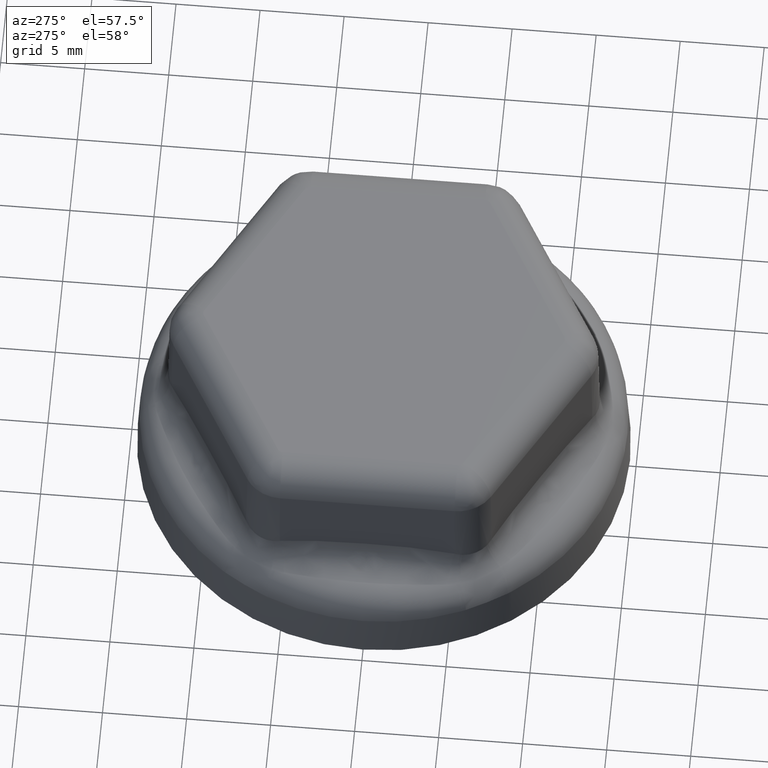
[diagram: clean part render]
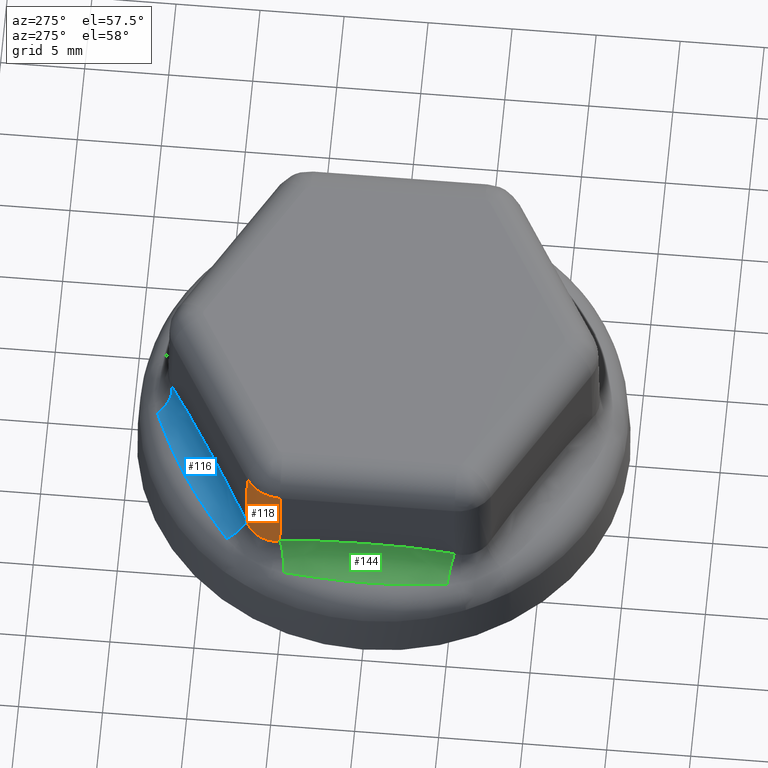
[diagram: same view with three faces highlighted in distinct colors, each labeled with its STEP entity id]
A machine part, auxiliary view with three faces highlighted in distinct colors.
Their STEP definitions:

[orange] entity #118 — the highlighted face is a freeform B-spline surface patch.
#118 = ADVANCED_FACE( '', ( #294 ), #295, .T. );
#294 = FACE_OUTER_BOUND( '', #1724, .T. );
#295 = B_SPLINE_SURFACE_WITH_KNOTS( '', 1, 3, ( ( #1725, #1726, #1727, #1728 ), ( #1729, #1730, #1731, #1732 ) ), .UNSPECIFIED., .F., .F., .F., ( 2, 2 ), ( 4, 4 ), ( 0.000000000000000, 1.00000000000000 ), ( 3.00000000000000, 7.00000000000000 ), .UNSPECIFIED. );
#1724 = EDGE_LOOP( '', ( #5415, #5416, #5417, #5418, #5419, #5420, #5421, #5422 ) );
#1725 = CARTESIAN_POINT( '', ( -11.5000000000000, 5.19619638932786, 2.80000000000000 ) );
#1726 = CARTESIAN_POINT( '', ( -11.4999999936443, 6.08106545357264, 2.80000000000000 ) );
#1727 = CARTESIAN_POINT( '', ( -11.0163571616939, 6.91875941123177, 2.80000000000000 ) );
#1728 = CARTESIAN_POINT( '', ( -10.2500380762108, 7.36119394885715, 2.80000000000000 ) );
#1729 = CARTESIAN_POINT( '', ( -11.2905392208614, 5.19619638932786, 14.8000000000000 ) );
#1730 = CARTESIAN_POINT( '', ( -11.2905392146864, 6.00689752078440, 14.7999999999985 ) );
#1731 = CARTESIAN_POINT( '', ( -10.8473954582745, 6.77444502195213, 14.8000000000000 ) );
#1732 = CARTESIAN_POINT( '', ( -10.1453076866415, 7.17979559302663, 14.8000000000000 ) );
#5415 = ORIENTED_EDGE( '', *, *, #6010, .T. );
#5416 = ORIENTED_EDGE( '', *, *, #6011, .T. );
#5417 = ORIENTED_EDGE( '', *, *, #6007, .F. );
#5418 = ORIENTED_EDGE( '', *, *, #6012, .T. );
#5419 = ORIENTED_EDGE( '', *, *, #6013, .T. );
#5420 = ORIENTED_EDGE( '', *, *, #6014, .T. );
#5421 = ORIENTED_EDGE( '', *, *, #6015, .T. );
#5422 = ORIENTED_EDGE( '', *, *, #6016, .T. );
#6007 = EDGE_CURVE( '', #6388, #6389, #6390, .T. );
#6010 = EDGE_CURVE( '', #6393, #6394, #6395, .T. );
#6011 = EDGE_CURVE( '', #6394, #6389, #6396, .T. );
#6012 = EDGE_CURVE( '', #6388, #6397, #6398, .T. );
#6013 = EDGE_CURVE( '', #6397, #6380, #6399, .T. );
#6014 = EDGE_CURVE( '', #6380, #6400, #6401, .T. );
#6015 = EDGE_CURVE( '', #6400, #6402, #6403, .T. );
#6016 = EDGE_CURVE( '', #6402, #6393, #6404, .T. );
#6380 = VERTEX_POINT( '', #7195 );
#6388 = VERTEX_POINT( '', #7261 );
#6389 = VERTEX_POINT( '', #7262 );
#6390 = LINE( '', #7263, #7264 );
#6393 = VERTEX_POINT( '', #7296 );
#6394 = VERTEX_POINT( '', #7297 );
#6395 = B_SPLINE_CURVE_WITH_KNOTS( '', 3, ( #7298, #7299, #7300, #7301 ), .UNSPECIFIED., .F., .F., ( 4, 4 ), ( 2.74283864732555E-018, 0.000128064360749918 ), .UNSPECIFIED. );
#6396 = B_SPLINE_CURVE_WITH_KNOTS( '', 3, ( #7302, #7303, #7304, #7305, #7306, #7307, #7308, #7309, #7310, #7311, #7312 ), .UNSPECIFIED., .F., .F., ( 4, 2, 1, 1, 1, 2, 4 ), ( 8.67361737988404E-019, 0.000177127505367448, 0.000265691258051174, 0.000309973134393034, 0.000332114072563967, 0.000343184541649432, 0.000354255010734898 ), .UNSPECIFIED. );
#6397 = VERTEX_POINT( '', #7313 );
#6398 = B_SPLINE_CURVE_WITH_KNOTS( '', 3, ( #7314, #7315, #7316, #7317, #7318, #7319, #7320, #7321, #7322, #7323, #7324, #7325, #7326, #7327, #7328, #7329, #7330, #7331, #7332, #7333, #7334, #7335, #7336, #7337, #7338, #7339, #7340, #7341, #7342, #7343, #7344, #7345, #7346, #7347, #7348, #7349, #7350, #7351, #7352, #7353, #7354 ), .UNSPECIFIED., .F., .F., ( 4, 2, 1, 1, 1, 1, 1, 1, 1, 1, 1, 2, 2, 2, 1, 1, 1, 2, 1, 2, 2, 1, 1, 1, 2, 1, 2, 2, 4 ), ( -5.99999999839724E-008, 2.33505648531624E-006, 4.73011297061645E-006, 9.52022594121687E-006, 1.91004518824203E-005, 3.82609037648271E-005, 7.65818075296407E-005, 0.000153223615059268, 0.000306507230118523, 0.000459790845177777, 0.000613074460237032, 0.000766358075296286, 0.000804678979061100, 0.000842999882825914, 0.000919641690355544, 0.00107292530541480, 0.00122620892047406, 0.00137949253553332, 0.00145613434306295, 0.00149445524682777, 0.00153277615059258, 0.00168605976565184, 0.00183934338071110, 0.00199262699577036, 0.00214591061082962, 0.00222255241835925, 0.00226087332212406, 0.00229919422588888, 0.00245247784094814 ), .UNSPECIFIED. );
#6399 = LINE( '', #7355, #7356 );
#6400 = VERTEX_POINT( '', #7357 );
#6401 = B_SPLINE_CURVE_WITH_KNOTS( '', 3, ( #7358, #7359, #7360, #7361, #7362, #7363, #7364, #7365, #7366, #7367, #7368, #7369, #7370 ), .UNSPECIFIED., .F., .F., ( 4, 2, 1, 1, 1, 1, 1, 1, 1, 4 ), ( -5.99999999864443E-008, 1.31716479369637E-006, 2.69432958737918E-006, 5.44865917474687E-006, 1.09573183494814E-005, 2.19746366989516E-005, 4.40092733978924E-005, 8.80785467957677E-005, 0.000176217093591518, 0.000352494187183017 ), .UNSPECIFIED. );
#6402 = VERTEX_POINT( '', #7371 );
#6403 = B_SPLINE_CURVE_WITH_KNOTS( '', 3, ( #7372, #7373, #7374, #7375 ), .UNSPECIFIED., .F., .F., ( 4, 4 ), ( 0.000000000000000, 0.000128064360490056 ), .UNSPECIFIED. );
#6404 = B_SPLINE_CURVE_WITH_KNOTS( '', 3, ( #7376, #7377, #7378, #7379, #7380, #7381, #7382, #7383, #7384, #7385, #7386, #7387, #7388, #7389, #7390, #7391, #7392, #7393, #7394, #7395, #7396, #7397, #7398, #7399, #7400, #7401, #7402, #7403 ), .UNSPECIFIED., .F., .F., ( 4, 2, 2, 2, 2, 2, 2, 1, 2, 1, 2, 2, 1, 1, 2, 4 ), ( -3.30054885332165E-013, 0.000103537339562056, 0.000207074679454168, 0.000258843349400224, 0.000310612019346281, 0.000414149359238394, 0.000465918029184450, 0.000517686699130506, 0.000621224039022615, 0.000828298718806835, 0.00103537339859105, 0.00124244807837527, 0.00134598541826738, 0.00144952275815949, 0.00155306009805160, 0.00165659743794371 ), .UNSPECIFIED. );
#7195 = CARTESIAN_POINT( '', ( -10.2196757163923, 7.30860479988576, 6.27891681478347 ) );
#7261 = CARTESIAN_POINT( '', ( -11.3597502147992, 5.19619638932786, 10.8349048128746 ) );
#7262 = CARTESIAN_POINT( '', ( -11.4392752810711, 5.19619638932786, 6.27891681747587 ) );
#7263 = CARTESIAN_POINT( '', ( -11.5000000000000, 5.19619638932786, 2.80000000000000 ) );
#7264 = VECTOR( '', #9058, 1000.00000000000 );
#7296 = CARTESIAN_POINT( '', ( -11.3977404711569, 5.65302092832695, 6.13169011020318 ) );
#7297 = CARTESIAN_POINT( '', ( -11.4175968756746, 5.53111812926056, 6.16554142145837 ) );
#7298 = CARTESIAN_POINT( '', ( -11.3977404711569, 5.65302092832694, 6.13169011020314 ) );
#7299 = CARTESIAN_POINT( '', ( -11.4054812359714, 5.61223212199141, 6.14175924485348 ) );
#7300 = CARTESIAN_POINT( '', ( -11.4120814007051, 5.57161516577532, 6.15311628314945 ) );
#7301 = CARTESIAN_POINT( '', ( -11.4175968756746, 5.53111812926056, 6.16554142145837 ) );
#7302 = CARTESIAN_POINT( '', ( -11.4175968756746, 5.53111812926056, 6.16554142145837 ) );
#7303 = CARTESIAN_POINT( '', ( -11.4252409963817, 5.47499164203817, 6.18276192514333 ) );
#7304 = CARTESIAN_POINT( '', ( -11.4308258953928, 5.41906305892288, 6.20096088400674 ) );
#7305 = CARTESIAN_POINT( '', ( -11.4362216901630, 5.33536632149620, 6.22940895112344 ) );
#7306 = CARTESIAN_POINT( '', ( -11.4381730316676, 5.29356699961245, 6.24392065213721 ) );
#7307 = CARTESIAN_POINT( '', ( -11.4391548300200, 5.24486472724353, 6.26128648245562 ) );
#7308 = CARTESIAN_POINT( '', ( -11.4393226631840, 5.22052666928372, 6.27006981783544 ) );
#7309 = CARTESIAN_POINT( '', ( -11.4393254112156, 5.21009857080559, 6.27385471378814 ) );
#7310 = CARTESIAN_POINT( '', ( -11.4393118728789, 5.20314702619812, 6.27638245652637 ) );
#7311 = CARTESIAN_POINT( '', ( -11.4392973249977, 5.19966285345177, 6.27765174758512 ) );
#7312 = CARTESIAN_POINT( '', ( -11.4392752811215, 5.19619638932786, 6.27891681458727 ) );
#7313 = CARTESIAN_POINT( '', ( -10.1799131827383, 7.23973407250149, 10.8349048128746 ) );
#7314 = CARTESIAN_POINT( '', ( -11.3597502147992, 5.19619638932786, 10.8349048128746 ) );
#7315 = CARTESIAN_POINT( '', ( -11.3597502147902, 5.19699474148970, 10.8349048130525 ) );
#7316 = CARTESIAN_POINT( '', ( -11.3597497852988, 5.19781682606597, 10.8349048126960 ) );
#7317 = CARTESIAN_POINT( '', ( -11.3597480659241, 5.19943796431338, 10.8349048119822 ) );
#7318 = CARTESIAN_POINT( '', ( -11.3597441972683, 5.20186944380173, 10.8349048103772 ) );
#7319 = CARTESIAN_POINT( '', ( -11.3597261491232, 5.20754130180002, 10.8349048029063 ) );
#7320 = CARTESIAN_POINT( '', ( -11.3596540142919, 5.21887864946378, 10.8349047731788 ) );
#7321 = CARTESIAN_POINT( '', ( -11.3593659568116, 5.24152793619691, 10.8349046555380 ) );
#7322 = CARTESIAN_POINT( '', ( -11.3582175215554, 5.28672537554445, 10.8349041952679 ) );
#7323 = CARTESIAN_POINT( '', ( -11.3536524581459, 5.37671944425562, 10.8349024381590 ) );
#7324 = CARTESIAN_POINT( '', ( -11.3407610318575, 5.50415677997366, 10.8348979151613 ) );
#7325 = CARTESIAN_POINT( '', ( -11.3153302468496, 5.65532137207707, 10.8348905208608 ) );
#7326 = CARTESIAN_POINT( '', ( -11.2800371873149, 5.80474321212585, 10.8348823855727 ) );
#7327 = CARTESIAN_POINT( '', ( -11.2499128820246, 5.90319227090772, 10.8348772221180 ) );
#7328 = CARTESIAN_POINT( '', ( -11.2289887012596, 5.96435246415073, 10.8348742822580 ) );
#7329 = CARTESIAN_POINT( '', ( -11.2246989219540, 5.97656595840722, 10.8348737085202 ) );
#7330 = CARTESIAN_POINT( '', ( -11.2159081039250, 6.00095561549482, 10.8348725941137 ) );
#7331 = CARTESIAN_POINT( '', ( -11.2114147051967, 6.01311031959466, 10.8348720544444 ) );
#7332 = CARTESIAN_POINT( '', ( -11.1976595254650, 6.04940897491169, 10.8348704958006 ) );
#7333 = CARTESIAN_POINT( '', ( -11.1690276932371, 6.12140303023216, 10.8348676164276 ) );
#7334 = CARTESIAN_POINT( '', ( -11.1157848081530, 6.23842213770695, 10.8348642162576 ) );
#7335 = CARTESIAN_POINT( '', ( -11.0431995461809, 6.37416855457016, 10.8348627898617 ) );
#7336 = CARTESIAN_POINT( '', ( -10.9890231122500, 6.46155365897054, 10.8348637081428 ) );
#7337 = CARTESIAN_POINT( '', ( -10.9461925506721, 6.52591002643367, 10.8348650692298 ) );
#7338 = CARTESIAN_POINT( '', ( -10.9242272069773, 6.55779232391559, 10.8348659168296 ) );
#7339 = CARTESIAN_POINT( '', ( -10.9014267140684, 6.58922538338084, 10.8348670000585 ) );
#7340 = CARTESIAN_POINT( '', ( -10.8860393360297, 6.61008013994709, 10.8348677722288 ) );
#7341 = CARTESIAN_POINT( '', ( -10.8782565536500, 6.62045091407036, 10.8348681831645 ) );
#7342 = CARTESIAN_POINT( '', ( -10.8390029423867, 6.67188363869260, 10.8348703487696 ) );
#7343 = CARTESIAN_POINT( '', ( -10.7738388470351, 6.75173865570213, 10.8348745385799 ) );
#7344 = CARTESIAN_POINT( '', ( -10.6691406404198, 6.86433616038691, 10.8348822310345 ) );
#7345 = CARTESIAN_POINT( '', ( -10.5575135657194, 6.96977261706628, 10.8348903696835 ) );
#7346 = CARTESIAN_POINT( '', ( -10.4784284733759, 7.03524015743969, 10.8348953390366 ) );
#7347 = CARTESIAN_POINT( '', ( -10.4173224285744, 7.08248853140460, 10.8348985807071 ) );
#7348 = CARTESIAN_POINT( '', ( -10.3863209673881, 7.10564925284495, 10.8349000797745 ) );
#7349 = CARTESIAN_POINT( '', ( -10.3546353501969, 7.12810289286805, 10.8349013345654 ) );
#7350 = CARTESIAN_POINT( '', ( -10.3333580305005, 7.14291326516703, 10.8349021098733 ) );
#7351 = CARTESIAN_POINT( '', ( -10.3226475909978, 7.15023546666345, 10.8349024666950 ) );
#7352 = CARTESIAN_POINT( '', ( -10.2688302236420, 7.18636589317685, 10.8349040776082 ) );
#7353 = CARTESIAN_POINT( '', ( -10.2248424820436, 7.21379412900601, 10.8349048128784 ) );
#7354 = CARTESIAN_POINT( '', ( -10.1799131827383, 7.23973407250149, 10.8349048128746 ) );
#7355 = CARTESIAN_POINT( '', ( -10.2500380762108, 7.36119394885715, 2.80000000000000 ) );
#7356 = VECTOR( '', #9060, 1000.00000000000 );
#7357 = CARTESIAN_POINT( '', ( -10.4988872491108, 7.12236987987352, 6.16554142145803 ) );
#7358 = CARTESIAN_POINT( '', ( -10.2196757167716, 7.30860479967069, 6.27891681458826 ) );
#7359 = CARTESIAN_POINT( '', ( -10.2200505419974, 7.30839156070907, 6.27875944043153 ) );
#7360 = CARTESIAN_POINT( '', ( -10.2204354253339, 7.30817247100508, 6.27859785090355 ) );
#7361 = CARTESIAN_POINT( '', ( -10.2211956387205, 7.30773943487376, 6.27827870705464 ) );
#7362 = CARTESIAN_POINT( '', ( -10.2223357560070, 7.30708957578662, 6.27780010833156 ) );
#7363 = CARTESIAN_POINT( '', ( -10.2249946108723, 7.30557110369085, 6.27668419935219 ) );
#7364 = CARTESIAN_POINT( '', ( -10.2303066513611, 7.30252562260563, 6.27445568306112 ) );
#7365 = CARTESIAN_POINT( '', ( -10.2409081026560, 7.29640051241747, 6.27001198632922 ) );
#7366 = CARTESIAN_POINT( '', ( -10.2620208571319, 7.28401368814086, 6.26117896704962 ) );
#7367 = CARTESIAN_POINT( '', ( -10.3038886181341, 7.25869339702384, 6.24373863442651 ) );
#7368 = CARTESIAN_POINT( '', ( -10.3862140183607, 7.20586228628981, 6.20982603921666 ) );
#7369 = CARTESIAN_POINT( '', ( -10.4544257625612, 7.15680265907039, 6.18263756624653 ) );
#7370 = CARTESIAN_POINT( '', ( -10.4988872491108, 7.12236987987352, 6.16554142145803 ) );
#7371 = CARTESIAN_POINT( '', ( -10.5945299674444, 7.04422232976524, 6.13169011026394 ) );
#7372 = CARTESIAN_POINT( '', ( -10.4988872491108, 7.12236987987352, 6.16554142145803 ) );
#7373 = CARTESIAN_POINT( '', ( -10.5312009739602, 7.09734482022951, 6.15311628317427 ) );
#7374 = CARTESIAN_POINT( '', ( -10.5630762074371, 7.07132043184775, 6.14175924489917 ) );
#7375 = CARTESIAN_POINT( '', ( -10.5945299674444, 7.04422232976524, 6.13169011026394 ) );
#7376 = CARTESIAN_POINT( '', ( -10.5945299676877, 7.04422232955538, 6.13169011018475 ) );
#7377 = CARTESIAN_POINT( '', ( -10.6200145739569, 7.02226678394723, 6.12353185081861 ) );
#7378 = CARTESIAN_POINT( '', ( -10.6451117798269, 6.99970287324909, 6.11614002731356 ) );
#7379 = CARTESIAN_POINT( '', ( -10.6944865901389, 6.95337845594559, 6.10264330675044 ) );
#7380 = CARTESIAN_POINT( '', ( -10.7187644297135, 6.92961786282134, 6.09653963144557 ) );
#7381 = CARTESIAN_POINT( '', ( -10.7545400215448, 6.89308503791951, 6.08822762529364 ) );
#7382 = CARTESIAN_POINT( '', ( -10.7663584058660, 6.88075868354789, 6.08559805944230 ) );
#7383 = CARTESIAN_POINT( '', ( -10.7897774692893, 6.85580838862255, 6.08060586588914 ) );
#7384 = CARTESIAN_POINT( '', ( -10.8013787302038, 6.84318346394327, 6.07824327297223 ) );
#7385 = CARTESIAN_POINT( '', ( -10.8357817830250, 6.80493905982238, 6.07154974946489 ) );
#7386 = CARTESIAN_POINT( '', ( -10.8582068085364, 6.77892518770452, 6.06760670111137 ) );
#7387 = CARTESIAN_POINT( '', ( -10.8910698903340, 6.73913033039706, 6.06240470268298 ) );
#7388 = CARTESIAN_POINT( '', ( -10.9019048488596, 6.72572393064066, 6.06078843991799 ) );
#7389 = CARTESIAN_POINT( '', ( -10.9232633821137, 6.69871803383402, 6.05779320380411 ) );
#7390 = CARTESIAN_POINT( '', ( -10.9548204280064, 6.65793857397567, 6.05365793680577 ) );
#7391 = CARTESIAN_POINT( '', ( -10.9849521796783, 6.61635662947617, 6.05054760154010 ) );
#7392 = CARTESIAN_POINT( '', ( -11.0433480170894, 6.53214084375758, 6.04560697274308 ) );
#7393 = CARTESIAN_POINT( '', ( -11.1162365618175, 6.41705242192435, 6.04241237194062 ) );
#7394 = CARTESIAN_POINT( '', ( -11.1793299188203, 6.29644570531288, 6.04565532891381 ) );
#7395 = CARTESIAN_POINT( '', ( -11.2374759567927, 6.17305251506817, 6.05227593317446 ) );
#7396 = CARTESIAN_POINT( '', ( -11.2640775331126, 6.10995821810541, 6.05727080414473 ) );
#7397 = CARTESIAN_POINT( '', ( -11.3001295621620, 6.01316699353482, 6.06770641880419 ) );
#7398 = CARTESIAN_POINT( '', ( -11.3227033168600, 5.94839245770924, 6.07560191028204 ) );
#7399 = CARTESIAN_POINT( '', ( -11.3522402272155, 5.85054476214077, 6.09048593248775 ) );
#7400 = CARTESIAN_POINT( '', ( -11.3690714460245, 5.78490125721430, 6.10266442142522 ) );
#7401 = CARTESIAN_POINT( '', ( -11.3844764014016, 5.71908227321909, 6.11614145541315 ) );
#7402 = CARTESIAN_POINT( '', ( -11.3914657168194, 5.68608481098277, 6.12352795206952 ) );
#7403 = CARTESIAN_POINT( '', ( -11.3977404711570, 5.65302092832692, 6.13169011020289 ) );
#9058 = DIRECTION( '', ( -0.0174524064372835, -1.93760634617881E-018, -0.999847695156391 ) );
#9060 = DIRECTION( '', ( -0.00872620332716741, 0.0151142272692013, -0.999847695156391 ) );

[blue] entity #116 — the highlighted face is a freeform B-spline surface patch.
#116 = ADVANCED_FACE( '', ( #290 ), #291, .F. );
#290 = FACE_OUTER_BOUND( '', #1606, .T. );
#291 = ( B_SPLINE_SURFACE( 3, 2, ( ( #1608, #1609, #1610 ), ( #1611, #1612, #1613 ), ( #1614, #1615, #1616 ), ( #1617, #1618, #1619 ), ( #1620, #1621, #1622 ), ( #1623, #1624, #1625 ), ( #1626, #1627, #1628 ), ( #1629, #1630, #1631 ), ( #1632, #1633, #1634 ), ( #1635, #1636, #1637 ), ( #1638, #1639, #1640 ), ( #1641, #1642, #1643 ), ( #1644, #1645, #1646 ), ( #1647, #1648, #1649 ), ( #1650, #1651, #1652 ), ( #1653, #1654, #1655 ), ( #1656, #1657, #1658 ), ( #1659, #1660, #1661 ), ( #1662, #1663, #1664 ), ( #1665, #1666, #1667 ), ( #1668, #1669, #1670 ), ( #1671, #1672, #1673 ), ( #1674, #1675, #1676 ), ( #1677, #1678, #1679 ), ( #1680, #1681, #1682 ), ( #1683, #1684, #1685 ), ( #1686, #1687, #1688 ), ( #1689, #1690, #1691 ), ( #1692, #1693, #1694 ), ( #1695, #1696, #1697 ), ( #1698, #1699, #1700 ), ( #1701, #1702, #1703 ), ( #1704, #1705, #1706 ), ( #1707, #1708, #1709 ), ( #1710, #1711, #1712 ), ( #1713, #1714, #1715 ) ), .UNSPECIFIED., .F., .F., .F. )B_SPLINE_SURFACE_WITH_KNOTS( ( 4, 2, 2, 2, 2, 2, 2, 2, 2, 2, 2, 2, 2, 2, 2, 2, 2, 4 ), ( 3, 3 ), ( 0.000643969503562067, 0.00129502073423057, 0.00194607196489907, 0.00259712319556757, 0.00324817442623607, 0.00389922565690457, 0.00455027688757307, 0.00520132811824157, 0.00585237934891007, 0.00617790496424432, 0.00650343057957857, 0.00715448181024707, 0.00780553304091557, 0.00845658427158407, 0.00910763550225257, 0.00975868673292107, 0.0104097379635896, 0.0110607891942581 ), ( 0.000000000000000, 1.00000000000000 ), .UNSPECIFIED. )RATIONAL_B_SPLINE_SURFACE( ( ( 1.00000000000000, 0.854673566220509, 1.00000000000000 ), ( 1.00000000000000, 0.850109201927524, 1.00000000000000 ), ( 1.00000000000000, 0.845668594588627, 1.00000000000000 ), ( 1.00000000000000, 0.837123622241579, 1.00000000000000 ), ( 1.00000000000000, 0.833019301675865, 1.00000000000000 ), ( 1.00000000000000, 0.825237608142828, 1.00000000000000 ), ( 1.00000000000000, 0.821560373522768, 1.00000000000000 ), ( 1.00000000000000, 0.814722343384086, 1.00000000000000 ), ( 1.00000000000000, 0.811561709937535, 1.00000000000000 ), ( 1.00000000000000, 0.805840478632139, 1.00000000000000 ), ( 1.00000000000000, 0.803280049221277, 1.00000000000000 ), ( 1.00000000000000, 0.798831890802173, 1.00000000000000 ), ( 1.00000000000000, 0.796944315117160, 1.00000000000000 ), ( 1.00000000000000, 0.793898678901322, 1.00000000000000 ), ( 1.00000000000000, 0.792740734321854, 1.00000000000000 ), ( 1.00000000000000, 0.791191196601892, 1.00000000000000 ), ( 1.00000000000000, 0.790799663810257, 1.00000000000000 ), ( 1.00000000000000, 0.790797737682352, 1.00000000000000 ), ( 1.00000000000000, 0.790894475065797, 1.00000000000000 ), ( 1.00000000000000, 0.791282261056861, 1.00000000000000 ), ( 1.00000000000000, 0.791573374700612, 1.00000000000000 ), ( 1.00000000000000, 0.792734285224306, 1.00000000000000 ), ( 1.00000000000000, 0.793892384033872, 1.00000000000000 ), ( 1.00000000000000, 0.796939754726879, 1.00000000000000 ), ( 1.00000000000000, 0.798828910185186, 1.00000000000000 ), ( 1.00000000000000, 0.803280956295802, 1.00000000000000 ), ( 1.00000000000000, 0.805843692421150, 1.00000000000000 ), ( 1.00000000000000, 0.811569434200848, 1.00000000000000 ), ( 1.00000000000000, 0.814732269817944, 1.00000000000000 ), ( 1.00000000000000, 0.821573680451709, 1.00000000000000 ), ( 1.00000000000000, 0.825252091877088, 1.00000000000000 ), ( 1.00000000000000, 0.833034153006539, 1.00000000000000 ), ( 1.00000000000000, 0.837137663388126, 1.00000000000000 ), ( 1.00000000000000, 0.845678065232351, 1.00000000000000 ), ( 1.00000000000000, 0.850114912415648, 1.00000000000000 ), ( 1.00000000000000, 0.854673566222406, 1.00000000000000 ) ) )BOUNDED_SURFACE(  )REPRESENTATION_ITEM( '' )GEOMETRIC_REPRESENTATION_ITEM(  )SURFACE(  ) );
#1606 = EDGE_LOOP( '', ( #5404, #5405, #5406, #5407 ) );
#1608 = CARTESIAN_POINT( '', ( -1.21959956432085, 12.5048011889571, 6.27891681747584 ) );
#1609 = CARTESIAN_POINT( '', ( -1.43429686754277, 12.4048624168147, 5.08733510763110 ) );
#1610 = CARTESIAN_POINT( '', ( -2.07224220144203, 13.2923450827600, 4.55691081517521 ) );
#1611 = CARTESIAN_POINT( '', ( -1.40478600493354, 12.3970290485456, 6.32132233778014 ) );
#1612 = CARTESIAN_POINT( '', ( -1.60625489125423, 12.3052842624350, 5.10212734705608 ) );
#1613 = CARTESIAN_POINT( '', ( -2.25035354637533, 13.2251270667616, 4.57811351798538 ) );
#1614 = CARTESIAN_POINT( '', ( -1.59041786903828, 12.2891116613128, 6.35817506814249 ) );
#1615 = CARTESIAN_POINT( '', ( -1.77927435722371, 12.2051754456988, 5.11284317374942 ) );
#1616 = CARTESIAN_POINT( '', ( -2.43000163835874, 13.1558098749544, 4.59653994077099 ) );
#1617 = CARTESIAN_POINT( '', ( -1.96238870811120, 12.0730474189221, 6.42301030238197 ) );
#1618 = CARTESIAN_POINT( '', ( -2.12735095246178, 12.0039022392067, 5.12827779436049 ) );
#1619 = CARTESIAN_POINT( '', ( -2.79180748117655, 13.0126935653835, 4.62895755736582 ) );
#1620 = CARTESIAN_POINT( '', ( -2.14872894898505, 11.9648999373587, 6.45098762325429 ) );
#1621 = CARTESIAN_POINT( '', ( -2.30240952249946, 11.9027370871931, 5.13299313644498 ) );
#1622 = CARTESIAN_POINT( '', ( -2.97396669737501, 12.9388933513671, 4.64294621828493 ) );
#1623 = CARTESIAN_POINT( '', ( -2.52197741158257, 11.7484203109296, 6.49983445333463 ) );
#1624 = CARTESIAN_POINT( '', ( -2.65446685084120, 11.6993702879314, 5.13827242223874 ) );
#1625 = CARTESIAN_POINT( '', ( -3.34019071206081, 12.7865718741209, 4.66736963288410 ) );
#1626 = CARTESIAN_POINT( '', ( -2.70888585270636, 11.6400880947319, 6.52070121694023 ) );
#1627 = CARTESIAN_POINT( '', ( -2.83146636275048, 11.5971682291675, 5.13883519606421 ) );
#1628 = CARTESIAN_POINT( '', ( -3.52425533768829, 12.7080500593672, 4.67780301509204 ) );
#1629 = CARTESIAN_POINT( '', ( -3.08315707576304, 11.4232759459582, 6.55674904382326 ) );
#1630 = CARTESIAN_POINT( '', ( -3.18726267750746, 11.3917775834797, 5.13742354203316 ) );
#1631 = CARTESIAN_POINT( '', ( -3.89363211871522, 12.5461144177476, 4.69582692816427 ) );
#1632 = CARTESIAN_POINT( '', ( -3.27051996215007, 11.3147959794217, 6.57192879995071 ) );
#1633 = CARTESIAN_POINT( '', ( -3.36605994305253, 11.2885887244782, 5.13544935918106 ) );
#1634 = CARTESIAN_POINT( '', ( -4.07894383555488, 12.4627001377450, 4.70341680656317 ) );
#1635 = CARTESIAN_POINT( '', ( -3.64560906776193, 11.0977179187011, 6.59774150154969 ) );
#1636 = CARTESIAN_POINT( '', ( -3.72524584120128, 11.0813152827937, 5.13035725289723 ) );
#1637 = CARTESIAN_POINT( '', ( -4.45011486806138, 12.2908910541305, 4.71632315706160 ) );
#1638 = CARTESIAN_POINT( '', ( -3.83333532756958, 10.9891198113226, 6.60837393916205 ) );
#1639 = CARTESIAN_POINT( '', ( -3.90563455166316, 10.9772306336268, 5.12724039777030 ) );
#1640 = CARTESIAN_POINT( '', ( -4.63597354530913, 12.2024959411206, 4.72163937613360 ) );
#1641 = CARTESIAN_POINT( '', ( -4.20908081072938, 10.7718283475523, 6.62597261736594 ) );
#1642 = CARTESIAN_POINT( '', ( -4.26772592473067, 10.7683025836849, 5.12101368243610 ) );
#1643 = CARTESIAN_POINT( '', ( -5.00751315496436, 12.0207307595622, 4.73043871500496 ) );
#1644 = CARTESIAN_POINT( '', ( -4.39710004114508, 10.6631349888638, 6.63293876956698 ) );
#1645 = CARTESIAN_POINT( '', ( -4.44942820900618, 10.6634593732302, 5.11790521677746 ) );
#1646 = CARTESIAN_POINT( '', ( -5.19319331836648, 11.9273605631400, 4.73392179129875 ) );
#1647 = CARTESIAN_POINT( '', ( -4.77338113151757, 10.4456693871860, 6.64383476547610 ) );
#1648 = CARTESIAN_POINT( '', ( -4.81380213037695, 10.4531956387207, 5.11256435405153 ) );
#1649 = CARTESIAN_POINT( '', ( -5.56364658804130, 11.7357515630963, 4.73936978909736 ) );
#1650 = CARTESIAN_POINT( '', ( -4.96164298398487, 10.3368971466316, 6.64776470290581 ) );
#1651 = CARTESIAN_POINT( '', ( -4.99647294225254, 10.3477755655308, 5.11033322590530 ) );
#1652 = CARTESIAN_POINT( '', ( -5.74841887063053, 11.6375128347719, 4.74133475792859 ) );
#1653 = CARTESIAN_POINT( '', ( -5.33837909593833, 10.1192836072412, 6.65296647919063 ) );
#1654 = CARTESIAN_POINT( '', ( -5.36239035210617, 10.1365743329523, 5.10729272143909 ) );
#1655 = CARTESIAN_POINT( '', ( -6.11634734351391, 11.4363747506315, 4.74393564599420 ) );
#1656 = CARTESIAN_POINT( '', ( -5.52685334447080, 10.0104423119664, 6.65423845512861 ) );
#1657 = CARTESIAN_POINT( '', ( -5.54563579740842, 10.0307938233335, 5.10648412540343 ) );
#1658 = CARTESIAN_POINT( '', ( -6.29950273278020, 11.3334756736660, 4.74457163399899 ) );
#1659 = CARTESIAN_POINT( '', ( -5.80971667597399, 9.84713096387404, 6.65424478123765 ) );
#1660 = CARTESIAN_POINT( '', ( -5.82062660682671, 9.87202788435108, 5.10648021281403 ) );
#1661 = CARTESIAN_POINT( '', ( -6.57252572001310, 11.1758597874068, 4.74457479705741 ) );
#1662 = CARTESIAN_POINT( '', ( -5.90402994028797, 9.79268556140086, 6.65392793933696 ) );
#1663 = CARTESIAN_POINT( '', ( -5.91231061846181, 9.81909011804316, 5.10667755522484 ) );
#1664 = CARTESIAN_POINT( '', ( -6.66324879472057, 11.1227773376325, 4.74441637609406 ) );
#1665 = CARTESIAN_POINT( '', ( -6.09270816288016, 9.68377794958835, 6.65264734822704 ) );
#1666 = CARTESIAN_POINT( '', ( -6.09566943735616, 9.71321211152272, 5.10745864093115 ) );
#1667 = CARTESIAN_POINT( '', ( -6.84404902264388, 11.0155709036248, 4.74377608056251 ) );
#1668 = CARTESIAN_POINT( '', ( -6.18708052658220, 9.62931146922963, 6.65168337555141 ) );
#1669 = CARTESIAN_POINT( '', ( -6.18735137626207, 9.66026775149073, 5.10804250136044 ) );
#1670 = CARTESIAN_POINT( '', ( -6.93413305210648, 10.9614424715989, 4.74329409419403 ) );
#1671 = CARTESIAN_POINT( '', ( -6.47007521894148, 9.46600294790203, 6.64778662376341 ) );
#1672 = CARTESIAN_POINT( '', ( -6.46211482485637, 9.50158707993226, 5.11032082931149 ) );
#1673 = CARTESIAN_POINT( '', ( -7.20311633808721, 10.7976898674134, 4.74134571835691 ) );
#1674 = CARTESIAN_POINT( '', ( -6.65863889127161, 9.35721486906249, 6.64385674659645 ) );
#1675 = CARTESIAN_POINT( '', ( -6.64497404648767, 9.39596827274046, 5.11255280782380 ) );
#1676 = CARTESIAN_POINT( '', ( -7.38080536581286, 10.6866604159318, 4.73938077965805 ) );
#1677 = CARTESIAN_POINT( '', ( -7.03553915443190, 9.13983111689939, 6.63295562203993 ) );
#1678 = CARTESIAN_POINT( '', ( -7.00967172467175, 9.18530224126311, 5.11789772529403 ) );
#1679 = CARTESIAN_POINT( '', ( -7.73237892131000, 10.4613944920848, 4.73393021753473 ) );
#1680 = CARTESIAN_POINT( '', ( -7.22387573592388, 9.03123545148806, 6.62598424958142 ) );
#1681 = CARTESIAN_POINT( '', ( -7.19150936866941, 9.08025551236529, 5.12100936145863 ) );
#1682 = CARTESIAN_POINT( '', ( -7.90626295725475, 10.3471587017860, 4.73044453111336 ) );
#1683 = CARTESIAN_POINT( '', ( -7.60027480704458, 8.81427635793005, 6.60837051062760 ) );
#1684 = CARTESIAN_POINT( '', ( -7.55382583316437, 8.87094638661118, 5.12724181604812 ) );
#1685 = CARTESIAN_POINT( '', ( -8.24976339560700, 10.1160667408986, 4.72163766186572 ) );
#1686 = CARTESIAN_POINT( '', ( -7.78833730011621, 8.70591292686614, 6.59772819024715 ) );
#1687 = CARTESIAN_POINT( '', ( -7.73430429591315, 8.76668422532866, 5.13036119426260 ) );
#1688 = CARTESIAN_POINT( '', ( -8.41937951253546, 9.99921130968202, 4.71631650141144 ) );
#1689 = CARTESIAN_POINT( '', ( -8.16412250511611, 8.48947396034501, 6.57189275934715 ) );
#1690 = CARTESIAN_POINT( '', ( -8.09363444911310, 8.55912219405394, 5.13545515101947 ) );
#1691 = CARTESIAN_POINT( '', ( -8.75396916737046, 9.76351550976895, 4.70339878626033 ) );
#1692 = CARTESIAN_POINT( '', ( -8.35184525055933, 8.38139839649076, 6.55670009769913 ) );
#1693 = CARTESIAN_POINT( '', ( -8.27248624018126, 8.45582228867609, 5.13742860293052 ) );
#1694 = CARTESIAN_POINT( '', ( -8.91894264851075, 9.64467585828160, 4.69580245510368 ) );
#1695 = CARTESIAN_POINT( '', ( -8.72686611852034, 8.16560705059230, 6.52062767297924 ) );
#1696 = CARTESIAN_POINT( '', ( -8.62836900400209, 8.25032493431386, 5.13883492125913 ) );
#1697 = CARTESIAN_POINT( '', ( -9.24396549918720, 9.40567364668959, 4.67776624311008 ) );
#1698 = CARTESIAN_POINT( '', ( -8.91416433218045, 8.05789119132339, 6.49974913060733 ) );
#1699 = CARTESIAN_POINT( '', ( -8.80540045770032, 8.14812721412768, 5.13826746653268 ) );
#1700 = CARTESIAN_POINT( '', ( -9.40401504568166, 9.28551169879144, 4.66732697152276 ) );
#1701 = CARTESIAN_POINT( '', ( -9.28823040010445, 7.84290884480987, 6.45088878436336 ) );
#1702 = CARTESIAN_POINT( '', ( -9.15751334164745, 7.94494135349620, 5.13297817215773 ) );
#1703 = CARTESIAN_POINT( '', ( -9.71900012467475, 9.04453318815430, 4.64289679883715 ) );
#1704 = CARTESIAN_POINT( '', ( -9.47499844911833, 7.73564219255407, 6.42290958883998 ) );
#1705 = CARTESIAN_POINT( '', ( -9.33259553228505, 7.84395275267440, 5.12825739254909 ) );
#1706 = CARTESIAN_POINT( '', ( -9.87393606494717, 8.92371704801306, 4.62890720059841 ) );
#1707 = CARTESIAN_POINT( '', ( -9.84787348304533, 7.52166900579519, 6.35809736922021 ) );
#1708 = CARTESIAN_POINT( '', ( -9.68072653692440, 7.64327034780597, 5.11282109299238 ) );
#1709 = CARTESIAN_POINT( '', ( -10.1785868828470, 8.68208879515509, 4.59650109130626 ) );
#1710 = CARTESIAN_POINT( '', ( -10.0339815652260, 7.41496173762478, 6.32126931450050 ) );
#1711 = CARTESIAN_POINT( '', ( -9.85377669266767, 7.54357570308510, 5.10210884852968 ) );
#1712 = CARTESIAN_POINT( '', ( -10.3283034303336, 8.56127598183581, 4.57808699874208 ) );
#1713 = CARTESIAN_POINT( '', ( -10.2196757168275, 7.30860479958056, 6.27891681745822 ) );
#1714 = CARTESIAN_POINT( '', ( -10.0257775497125, 7.44456873222661, 5.08733510762495 ) );
#1715 = CARTESIAN_POINT( '', ( -10.4753874168795, 8.44078693057285, 4.55691081516639 ) );
#5404 = ORIENTED_EDGE( '', *, *, #6003, .F. );
#5405 = ORIENTED_EDGE( '', *, *, #6004, .F. );
#5406 = ORIENTED_EDGE( '', *, *, #6005, .F. );
#5407 = ORIENTED_EDGE( '', *, *, #6006, .F. );
#6003 = EDGE_CURVE( '', #6380, #6381, #6382, .T. );
#6004 = EDGE_CURVE( '', #6383, #6380, #6384, .T. );
#6005 = EDGE_CURVE( '', #6385, #6383, #6386, .T. );
#6006 = EDGE_CURVE( '', #6381, #6385, #6387, .T. );
#6380 = VERTEX_POINT( '', #7195 );
#6381 = VERTEX_POINT( '', #7196 );
#6382 = CIRCLE( '', #7197, 2.00000000000000 );
#6383 = VERTEX_POINT( '', #7198 );
#6384 = B_SPLINE_CURVE_WITH_KNOTS( '', 3, ( #7199, #7200, #7201, #7202, #7203, #7204, #7205, #7206, #7207, #7208, #7209, #7210, #7211, #7212, #7213, #7214, #7215, #7216, #7217, #7218, #7219, #7220, #7221, #7222, #7223, #7224, #7225, #7226, #7227 ), .UNSPECIFIED., .F., .F., ( 4, 2, 2, 2, 1, 1, 1, 1, 2, 2, 2, 1, 1, 1, 2, 2, 2, 4 ), ( 0.000643969503566432, 0.00129502073421774, 0.00194607196486905, 0.00259712319552036, 0.00324817442617167, 0.00389922565682298, 0.00455027688747429, 0.00520132811812560, 0.00585237934877691, 0.00617790496410257, 0.00650343057942822, 0.00715448181007954, 0.00780553304073085, 0.00845658427138216, 0.00910763550203347, 0.00975868673268478, 0.0104097379633361, 0.0110607891939874 ), .UNSPECIFIED. );
#6385 = VERTEX_POINT( '', #7228 );
#6386 = CIRCLE( '', #7229, 2.00000000000000 );
#6387 = B_SPLINE_CURVE_WITH_KNOTS( '', 3, ( #7230, #7231, #7232, #7233, #7234, #7235, #7236, #7237, #7238, #7239, #7240, #7241, #7242, #7243, #7244, #7245, #7246, #7247, #7248, #7249, #7250, #7251, #7252, #7253, #7254, #7255, #7256, #7257, #7258, #7259, #7260 ), .UNSPECIFIED., .F., .F., ( 4, 2, 2, 2, 2, 1, 1, 2, 2, 2, 1, 1, 1, 2, 2, 2, 2, 4 ), ( 0.000560050480484346, 0.00116967796041019, 0.00177930544033604, 0.00238893292026188, 0.00299856040018773, 0.00360818788011358, 0.00421781536003942, 0.00482744283996527, 0.00513225657992820, 0.00543707031989112, 0.00604669779981696, 0.00665632527974281, 0.00726595275966865, 0.00787558023959450, 0.00848520771952034, 0.00909483519944618, 0.00970446267937203, 0.0103140901592979 ), .UNSPECIFIED. );
#7195 = CARTESIAN_POINT( '', ( -10.2196757163923, 7.30860479988576, 6.27891681478347 ) );
#7196 = CARTESIAN_POINT( '', ( -10.4753874165159, 8.44078693087131, 4.55691081522074 ) );
#7197 = AXIS2_PLACEMENT_3D( '', #9052, #9053, #9054 );
#7198 = CARTESIAN_POINT( '', ( -1.21959956432464, 12.5048011889549, 6.27891681747587 ) );
#7199 = CARTESIAN_POINT( '', ( -1.21959956432458, 12.5048011889549, 6.27891681747670 ) );
#7200 = CARTESIAN_POINT( '', ( -1.40478684120436, 12.3970285618243, 6.32132253128174 ) );
#7201 = CARTESIAN_POINT( '', ( -1.59041786897024, 12.2891116613365, 6.35817506891618 ) );
#7202 = CARTESIAN_POINT( '', ( -1.96238870815726, 12.0730474189112, 6.42301030160442 ) );
#7203 = CARTESIAN_POINT( '', ( -2.14872894891422, 11.9648999373871, 6.45098762387501 ) );
#7204 = CARTESIAN_POINT( '', ( -2.52197741160180, 11.7484203109311, 6.49983445270715 ) );
#7205 = CARTESIAN_POINT( '', ( -2.70888585263035, 11.6400880947657, 6.52070121743903 ) );
#7206 = CARTESIAN_POINT( '', ( -3.08315707575766, 11.4232759459715, 6.55674904331662 ) );
#7207 = CARTESIAN_POINT( '', ( -3.45788280798578, 11.2063160260834, 6.58710906284362 ) );
#7208 = CARTESIAN_POINT( '', ( -4.02106158030634, 10.8805217062609, 6.61900646437091 ) );
#7209 = CARTESIAN_POINT( '', ( -4.58511927900397, 10.5544416277771, 6.63990482755055 ) );
#7210 = CARTESIAN_POINT( '', ( -5.14990484732097, 10.2281249025690, 6.65169450305807 ) );
#7211 = CARTESIAN_POINT( '', ( -5.52685334436036, 10.0104423120302, 6.65423845512533 ) );
#7212 = CARTESIAN_POINT( '', ( -5.80971667585567, 9.84713096394232, 6.65424478123928 ) );
#7213 = CARTESIAN_POINT( '', ( -5.90402994016935, 9.79268556146987, 6.65392793931065 ) );
#7214 = CARTESIAN_POINT( '', ( -6.09270816275233, 9.68377794966159, 6.65264734825502 ) );
#7215 = CARTESIAN_POINT( '', ( -6.18708052645037, 9.62931146930670, 6.65168337550416 ) );
#7216 = CARTESIAN_POINT( '', ( -6.47007521881307, 9.46600294797416, 6.64778662386332 ) );
#7217 = CARTESIAN_POINT( '', ( -6.84720257284592, 9.24842678235100, 6.63992699519240 ) );
#7218 = CARTESIAN_POINT( '', ( -7.41221231388634, 8.92263978902393, 6.61901283200169 ) );
#7219 = CARTESIAN_POINT( '', ( -7.97639975959454, 8.59754952421826, 6.58708542229692 ) );
#7220 = CARTESIAN_POINT( '', ( -8.35184525033760, 8.38139839662854, 6.55670009721490 ) );
#7221 = CARTESIAN_POINT( '', ( -8.72686611836348, 8.16560705067238, 6.52062767349990 ) );
#7222 = CARTESIAN_POINT( '', ( -8.91416433193536, 8.05789119147690, 6.49974913001150 ) );
#7223 = CARTESIAN_POINT( '', ( -9.28823039994228, 7.84290884489043, 6.45088878501239 ) );
#7224 = CARTESIAN_POINT( '', ( -9.47499844884804, 7.73564219272491, 6.42290958810622 ) );
#7225 = CARTESIAN_POINT( '', ( -9.84787348288011, 7.52166900587427, 6.35809737002967 ) );
#7226 = CARTESIAN_POINT( '', ( -10.0339808510707, 7.41496214661988, 6.32126947935301 ) );
#7227 = CARTESIAN_POINT( '', ( -10.2196757165959, 7.30860479971321, 6.27891681751104 ) );
#7228 = CARTESIAN_POINT( '', ( -2.07224220144217, 13.2923450827599, 4.55691081517522 ) );
#7229 = AXIS2_PLACEMENT_3D( '', #9055, #9056, #9057 );
#7230 = CARTESIAN_POINT( '', ( -10.4753874165156, 8.44078693087101, 4.55691081521879 ) );
#7231 = CARTESIAN_POINT( '', ( -10.3185958018540, 8.56922832817719, 4.57948463947444 ) );
#7232 = CARTESIAN_POINT( '', ( -10.1607215849039, 8.69647253282615, 4.59865803346427 ) );
#7233 = CARTESIAN_POINT( '', ( -9.84268950081386, 8.94824965849890, 4.63193128840546 ) );
#7234 = CARTESIAN_POINT( '', ( -9.68253144640048, 9.07278292041025, 4.64602437329507 ) );
#7235 = CARTESIAN_POINT( '', ( -9.35981969256430, 9.31887398252717, 4.67036983402055 ) );
#7236 = CARTESIAN_POINT( '', ( -9.19726589782715, 9.44043198073298, 4.68061848443929 ) );
#7237 = CARTESIAN_POINT( '', ( -8.86966179639753, 9.68035221468310, 4.69818634546029 ) );
#7238 = CARTESIAN_POINT( '', ( -8.70461144204654, 9.79871457720853, 4.70550337962919 ) );
#7239 = CARTESIAN_POINT( '', ( -8.37192648038658, 10.0320624715211, 4.71788139862569 ) );
#7240 = CARTESIAN_POINT( '', ( -8.03665723085780, 10.2620336499370, 4.72800152589108 ) );
#7241 = CARTESIAN_POINT( '', ( -7.52577964118115, 10.5964253944718, 4.73786714201859 ) );
#7242 = CARTESIAN_POINT( '', ( -7.17976060449003, 10.8120881746370, 4.74155788440070 ) );
#7243 = CARTESIAN_POINT( '', ( -6.91817534091910, 10.9710523664767, 4.74338458960923 ) );
#7244 = CARTESIAN_POINT( '', ( -6.83060510979081, 11.0235943395733, 4.74383555875277 ) );
#7245 = CARTESIAN_POINT( '', ( -6.65503014059992, 11.1275920213250, 4.74443205388922 ) );
#7246 = CARTESIAN_POINT( '', ( -6.56700298090097, 11.1790618239731, 4.74457784106482 ) );
#7247 = CARTESIAN_POINT( '', ( -6.30220395812656, 11.3318880679594, 4.74456530005104 ) );
#7248 = CARTESIAN_POINT( '', ( -5.94722390935397, 11.5314328055134, 4.74335679031237 ) );
#7249 = CARTESIAN_POINT( '', ( -5.40907843592599, 11.8182081342268, 4.73779560584676 ) );
#7250 = CARTESIAN_POINT( '', ( -4.86538617033159, 12.0926579927395, 4.72791860082023 ) );
#7251 = CARTESIAN_POINT( '', ( -4.49935345689429, 12.2676104145672, 4.71779993219801 ) );
#7252 = CARTESIAN_POINT( '', ( -4.13162020078565, 12.4386870977219, 4.70542634652848 ) );
#7253 = CARTESIAN_POINT( '', ( -3.94690322355989, 12.5222875416450, 4.69811342428377 ) );
#7254 = CARTESIAN_POINT( '', ( -3.57587721136056, 12.6857746494811, 4.68055705031809 ) );
#7255 = CARTESIAN_POINT( '', ( -3.38956805537212, 12.7656612837201, 4.67031580293257 ) );
#7256 = CARTESIAN_POINT( '', ( -3.01549257618056, 12.9219142697048, 4.64598698673061 ) );
#7257 = CARTESIAN_POINT( '', ( -2.82772605671076, 12.9982805937999, 4.63190318972141 ) );
#7258 = CARTESIAN_POINT( '', ( -2.45090175252539, 13.1477188667951, 4.59864692246589 ) );
#7259 = CARTESIAN_POINT( '', ( -2.26184362171799, 13.2207907892971, 4.57948131816549 ) );
#7260 = CARTESIAN_POINT( '', ( -2.07224220144233, 13.2923450827603, 4.55691081517536 ) );
#9052 = CARTESIAN_POINT( '', ( -11.2195234115244, 9.04039180768525, 6.31382163043758 ) );
#9053 = DIRECTION( '', ( 0.851236391937257, 0.487548452030954, 0.194147139983727 ) );
#9054 = DIRECTION( '', ( -0.497005259561348, 0.867747527780032, 1.07773312487528E-017 ) );
#9055 = CARTESIAN_POINT( '', ( -2.21944725947756, 14.2365881967991, 6.31382163035044 ) );
#9056 = DIRECTION( '', ( -0.847847540997097, -0.493418114025082, 0.194147140017841 ) );
#9057 = DIRECTION( '', ( 0.502988773348469, -0.864292944484335, 1.07773312506465E-017 ) );

[green] entity #144 — the highlighted face is a freeform B-spline surface patch.
#144 = ADVANCED_FACE( '', ( #346 ), #347, .F. );
#346 = FACE_OUTER_BOUND( '', #2782, .T. );
#347 = ( B_SPLINE_SURFACE( 3, 2, ( ( #2784, #2785, #2786 ), ( #2787, #2788, #2789 ), ( #2790, #2791, #2792 ), ( #2793, #2794, #2795 ), ( #2796, #2797, #2798 ), ( #2799, #2800, #2801 ), ( #2802, #2803, #2804 ), ( #2805, #2806, #2807 ), ( #2808, #2809, #2810 ), ( #2811, #2812, #2813 ), ( #2814, #2815, #2816 ), ( #2817, #2818, #2819 ), ( #2820, #2821, #2822 ), ( #2823, #2824, #2825 ), ( #2826, #2827, #2828 ), ( #2829, #2830, #2831 ), ( #2832, #2833, #2834 ), ( #2835, #2836, #2837 ), ( #2838, #2839, #2840 ), ( #2841, #2842, #2843 ), ( #2844, #2845, #2846 ), ( #2847, #2848, #2849 ), ( #2850, #2851, #2852 ), ( #2853, #2854, #2855 ), ( #2856, #2857, #2858 ), ( #2859, #2860, #2861 ), ( #2862, #2863, #2864 ), ( #2865, #2866, #2867 ), ( #2868, #2869, #2870 ), ( #2871, #2872, #2873 ), ( #2874, #2875, #2876 ), ( #2877, #2878, #2879 ), ( #2880, #2881, #2882 ), ( #2883, #2884, #2885 ), ( #2886, #2887, #2888 ), ( #2889, #2890, #2891 ) ), .UNSPECIFIED., .F., .F., .F. )B_SPLINE_SURFACE_WITH_KNOTS( ( 4, 2, 2, 2, 2, 2, 2, 2, 2, 2, 2, 2, 2, 2, 2, 2, 2, 4 ), ( 3, 3 ), ( 0.000643969489724008, 0.00129502072125740, 0.00194607195279079, 0.00259712318432418, 0.00324817441585757, 0.00389922564739097, 0.00455027687892436, 0.00520132811045775, 0.00585237934199114, 0.00617790495775784, 0.00650343057352453, 0.00715448180505792, 0.00780553303659132, 0.00845658426812471, 0.00910763549965810, 0.00975868673119149, 0.0104097379627249, 0.0110607891942583 ), ( 0.000000000000000, 1.00000000000000 ), .UNSPECIFIED. )RATIONAL_B_SPLINE_SURFACE( ( ( 1.00000000000000, 0.854673566511558, 1.00000000000000 ), ( 1.00000000000000, 0.850109202207197, 1.00000000000000 ), ( 1.00000000000000, 0.845668594856467, 1.00000000000000 ), ( 1.00000000000000, 0.837123622484553, 1.00000000000000 ), ( 1.00000000000000, 0.833019301906064, 1.00000000000000 ), ( 1.00000000000000, 0.825237608346802, 1.00000000000000 ), ( 1.00000000000000, 0.821560373713373, 1.00000000000000 ), ( 1.00000000000000, 0.814722343547751, 1.00000000000000 ), ( 1.00000000000000, 0.811561710087638, 1.00000000000000 ), ( 1.00000000000000, 0.805840478755644, 1.00000000000000 ), ( 1.00000000000000, 0.803280049331571, 1.00000000000000 ), ( 1.00000000000000, 0.798831890886877, 1.00000000000000 ), ( 1.00000000000000, 0.796944315189532, 1.00000000000000 ), ( 1.00000000000000, 0.793898678950325, 1.00000000000000 ), ( 1.00000000000000, 0.792740734359830, 1.00000000000000 ), ( 1.00000000000000, 0.791191196619493, 1.00000000000000 ), ( 1.00000000000000, 0.790799663818519, 1.00000000000000 ), ( 1.00000000000000, 0.790797737678282, 1.00000000000000 ), ( 1.00000000000000, 0.790894475057808, 1.00000000000000 ), ( 1.00000000000000, 0.791282261041668, 1.00000000000000 ), ( 1.00000000000000, 0.791573374682071, 1.00000000000000 ), ( 1.00000000000000, 0.792734285196616, 1.00000000000000 ), ( 1.00000000000000, 0.793892384001226, 1.00000000000000 ), ( 1.00000000000000, 0.796939754686659, 1.00000000000000 ), ( 1.00000000000000, 0.798828910142301, 1.00000000000000 ), ( 1.00000000000000, 0.803280956249975, 1.00000000000000 ), ( 1.00000000000000, 0.805843692374969, 1.00000000000000 ), ( 1.00000000000000, 0.811569434155757, 1.00000000000000 ), ( 1.00000000000000, 0.814732269774595, 1.00000000000000 ), ( 1.00000000000000, 0.821573680413267, 1.00000000000000 ), ( 1.00000000000000, 0.825252091841987, 1.00000000000000 ), ( 1.00000000000000, 0.833034152979617, 1.00000000000000 ), ( 1.00000000000000, 0.837137663365881, 1.00000000000000 ), ( 1.00000000000000, 0.845678065220568, 1.00000000000000 ), ( 1.00000000000000, 0.850114912409596, 1.00000000000000 ), ( 1.00000000000000, 0.854673566222410, 1.00000000000000 ) ) )BOUNDED_SURFACE(  )REPRESENTATION_ITEM( '' )GEOMETRIC_REPRESENTATION_ITEM(  )SURFACE(  ) );
#2782 = EDGE_LOOP( '', ( #5565, #5566, #5567, #5568 ) );
#2784 = CARTESIAN_POINT( '', ( -11.4392752811183, 5.19619640299470, 6.27891681477185 ) );
#2785 = CARTESIAN_POINT( '', ( -11.4600744172002, 4.96029369721753, 5.08733510668787 ) );
#2786 = CARTESIAN_POINT( '', ( -12.5476296162936, 4.85155816411583, 4.55691081382321 ) );
#2787 = CARTESIAN_POINT( '', ( -11.4385350900029, 4.98193417051685, 6.32132233536997 ) );
#2788 = CARTESIAN_POINT( '', ( -11.4598162176979, 4.76158460289542, 5.10212734630631 ) );
#2789 = CARTESIAN_POINT( '', ( -12.5784727793992, 4.66370020655372, 4.57811351678014 ) );
#2790 = CARTESIAN_POINT( '', ( -11.4378918231973, 4.76721356656528, 6.35817506598351 ) );
#2791 = CARTESIAN_POINT( '', ( -11.4596291722437, 4.56169094143080, 5.11284317315788 ) );
#2792 = CARTESIAN_POINT( '', ( -12.6082663764556, 4.47346179909266, 4.59653993969164 ) );
#2793 = CARTESIAN_POINT( '', ( -11.4367601199663, 4.33704524872355, 6.42301030066514 ) );
#2794 = CARTESIAN_POINT( '', ( -11.4593597599344, 4.15961116380323, 5.12827779402935 ) );
#2795 = CARTESIAN_POINT( '', ( -12.6652269382601, 4.08857059285409, 4.62895755650726 ) );
#2796 = CARTESIAN_POINT( '', ( -11.4362717740106, 4.12159612532415, 6.45098762172641 ) );
#2797 = CARTESIAN_POINT( '', ( -11.4592774533301, 3.95742341876830, 5.13299313621665 ) );
#2798 = CARTESIAN_POINT( '', ( -12.6923936863084, 3.89391597690716, 4.64294621752101 ) );
#2799 = CARTESIAN_POINT( '', ( -11.4354191494143, 3.69011366102504, 6.49983445213716 ) );
#2800 = CARTESIAN_POINT( '', ( -11.4591853030512, 3.55084942874652, 5.13827242217252 ) );
#2801 = CARTESIAN_POINT( '', ( -12.7435914249988, 3.50059593771662, 4.66736963228534 ) );
#2802 = CARTESIAN_POINT( '', ( -11.4350549186983, 3.47408009445380, 6.52070121588375 ) );
#2803 = CARTESIAN_POINT( '', ( -11.4591754797965, 3.34646232536044, 5.13883519605758 ) );
#2804 = CARTESIAN_POINT( '', ( -12.7676218515773, 3.30193038841201, 4.67780301456384 ) );
#2805 = CARTESIAN_POINT( '', ( -11.4344257015352, 3.04154563243580, 6.55674904301215 ) );
#2806 = CARTESIAN_POINT( '', ( -11.4592001203076, 2.93563835488894, 5.13742354211293 ) );
#2807 = CARTESIAN_POINT( '', ( -12.8120698628537, 2.90107289125393, 4.69582692775867 ) );
#2808 = CARTESIAN_POINT( '', ( -11.4341607379046, 2.82504462954934, 6.57192879924357 ) );
#2809 = CARTESIAN_POINT( '', ( -11.4592345797972, 2.72920095105692, 5.13544935928782 ) );
#2810 = CARTESIAN_POINT( '', ( -12.8324868358440, 2.69888109663582, 4.70341680620954 ) );
#2811 = CARTESIAN_POINT( '', ( -11.4337101755191, 2.39166890448273, 6.59774150102238 ) );
#2812 = CARTESIAN_POINT( '', ( -11.4593234628422, 2.31450011724409, 5.13035725303399 ) );
#2813 = CARTESIAN_POINT( '', ( -12.8692813212635, 2.29153301108225, 4.71632315679800 ) );
#2814 = CARTESIAN_POINT( '', ( -11.4335245856289, 2.17479414055963, 6.60837393871053 ) );
#2815 = CARTESIAN_POINT( '', ( -11.4593778677507, 2.10623658659370, 5.12724039791061 ) );
#2816 = CARTESIAN_POINT( '', ( -12.8856582465369, 2.08637711833491, 4.72163937590797 ) );
#2817 = CARTESIAN_POINT( '', ( -11.4332173995559, 1.74074327433289, 6.62597261704596 ) );
#2818 = CARTESIAN_POINT( '', ( -11.4594865554716, 1.68819223354362, 5.12101368256876 ) );
#2819 = CARTESIAN_POINT( '', ( -12.9140147867776, 1.67373178660184, 4.73043871484484 ) );
#2820 = CARTESIAN_POINT( '', ( -11.4330958049160, 1.52356716476379, 6.63293876930187 ) );
#2821 = CARTESIAN_POINT( '', ( -11.4595408139416, 1.47841183394779, 5.11790521689853 ) );
#2822 = CARTESIAN_POINT( '', ( -12.9259939065000, 1.46624294965758, 4.73392179116628 ) );
#2823 = CARTESIAN_POINT( '', ( -11.4329056145982, 1.08896538012840, 6.64383476530698 ) );
#2824 = CARTESIAN_POINT( '', ( -11.4596340390478, 1.05772289378071, 5.11256435414331 ) );
#2825 = CARTESIAN_POINT( '', ( -12.9452822798554, 1.04961650667286, 4.73936978901272 ) );
#2826 = CARTESIAN_POINT( '', ( -11.4328370172845, 0.871539712765004, 6.64776470277682 ) );
#2827 = CARTESIAN_POINT( '', ( -11.4596729835347, 0.846815293302686, 5.11033322597862 ) );
#2828 = CARTESIAN_POINT( '', ( -12.9525911868555, 0.840479651611359, 4.74133475786422 ) );
#2829 = CARTESIAN_POINT( '', ( -11.4327462199405, 0.436469899022058, 6.65296647913304 ) );
#2830 = CARTESIAN_POINT( '', ( -11.4597260557382, 0.424320903847785, 5.10729272147482 ) );
#2831 = CARTESIAN_POINT( '', ( -12.9623647328918, 0.421275204713626, 4.74393564596527 ) );
#2832 = CARTESIAN_POINT( '', ( -11.4327240175174, 0.218825763909784, 6.65423845510136 ) );
#2833 = CARTESIAN_POINT( '', ( -11.4597401698350, 0.212735438002966, 5.10648412542032 ) );
#2834 = CARTESIAN_POINT( '', ( -12.9648292129054, 0.211208446013554, 4.74457163398534 ) );
#2835 = CARTESIAN_POINT( '', ( -11.4327239070940, -0.107796741447830, 6.65424478125107 ) );
#2836 = CARTESIAN_POINT( '', ( -11.4597402381298, -0.104796558670606, 5.10648021280571 ) );
#2837 = CARTESIAN_POINT( '', ( -12.9648413450596, -0.104044340292555, 4.74457479706413 ) );
#2838 = CARTESIAN_POINT( '', ( -11.4327294375897, -0.216697125637710, 6.65392793936309 ) );
#2839 = CARTESIAN_POINT( '', ( -11.4597367935054, -0.210666125161448, 5.10667755520859 ) );
#2840 = CARTESIAN_POINT( '', ( -12.9642321324382, -0.209154052725260, 4.74441637610715 ) );
#2841 = CARTESIAN_POINT( '', ( -11.4327517903903, -0.434551065737042, 6.65264734827746 ) );
#2842 = CARTESIAN_POINT( '', ( -11.4597231596038, -0.422398523873802, 5.10745864090072 ) );
#2843 = CARTESIAN_POINT( '', ( -12.9617887511455, -0.419334860401496, 4.74377608058769 ) );
#2844 = CARTESIAN_POINT( '', ( -11.4327686165957, -0.543513170442990, 6.65168337561310 ) );
#2845 = CARTESIAN_POINT( '', ( -11.4597129682822, -0.528269592193491, 5.10804250132352 ) );
#2846 = CARTESIAN_POINT( '', ( -12.9599541686965, -0.524414134547196, 4.74329409422487 ) );
#2847 = CARTESIAN_POINT( '', ( -11.4328366346506, -0.870248024263652, 6.64778662385744 ) );
#2848 = CARTESIAN_POINT( '', ( -11.4596731999204, -0.845562054918170, 5.11032082925821 ) );
#2849 = CARTESIAN_POINT( '', ( -12.9526318965842, -0.839236795924373, 4.74134571840392 ) );
#2850 = CARTESIAN_POINT( '', ( -11.4329052309114, -1.08794299444379, 6.64385674670962 ) );
#2851 = CARTESIAN_POINT( '', ( -11.4596342405907, -1.05673219005200, 5.11255280776303 ) );
#2852 = CARTESIAN_POINT( '', ( -12.9453220849275, -1.04863473393916, 4.73938077971456 ) );
#2853 = CARTESIAN_POINT( '', ( -11.4330955107477, -1.52304007369795, 6.63295562218742 ) );
#2854 = CARTESIAN_POINT( '', ( -11.4595409447091, -1.47790266037732, 5.11789772522700 ) );
#2855 = CARTESIAN_POINT( '', ( -12.9260228500660, -1.46573932680327, 4.73393021760854 ) );
#2856 = CARTESIAN_POINT( '', ( -11.4332171965064, -1.74044217072879, 6.62598424974396 ) );
#2857 = CARTESIAN_POINT( '', ( -11.4594866308978, -1.68790204418182, 5.12100936139209 ) );
#2858 = CARTESIAN_POINT( '', ( -12.9140337716356, -1.67344521468443, 4.73044453119471 ) );
#2859 = CARTESIAN_POINT( '', ( -11.4335246454630, -2.17489287564092, 6.60837051081604 ) );
#2860 = CARTESIAN_POINT( '', ( -11.4593778429983, -2.10633187009736, 5.12724181599047 ) );
#2861 = CARTESIAN_POINT( '', ( -12.8856524820937, -2.08647130153250, 4.72163766195986 ) );
#2862 = CARTESIAN_POINT( '', ( -11.4337104078560, -2.39194148796258, 6.59772819044597 ) );
#2863 = CARTESIAN_POINT( '', ( -11.4593233940488, -2.31476188460221, 5.13036119421249 ) );
#2864 = CARTESIAN_POINT( '', ( -12.8692607685574, -2.29179088358126, 4.71631650151087 ) );
#2865 = CARTESIAN_POINT( '', ( -11.4341613669796, -2.82560050570046, 6.57189275956017 ) );
#2866 = CARTESIAN_POINT( '', ( -11.4592344787026, -2.72973194182838, 5.13545515098839 ) );
#2867 = CARTESIAN_POINT( '', ( -12.8324370456791, -2.69940192504221, 4.70339878636681 ) );
#2868 = CARTESIAN_POINT( '', ( -11.4344265558750, -3.04221095433966, 6.55670009791587 ) );
#2869 = CARTESIAN_POINT( '', ( -11.4592000319712, -2.93627208937874, 5.13742860291111 ) );
#2870 = CARTESIAN_POINT( '', ( -12.8120056290744, -2.90169297668866, 4.69580245521219 ) );
#2871 = CARTESIAN_POINT( '', ( -11.4350562023907, -3.47488422647125, 6.52062767319376 ) );
#2872 = CARTESIAN_POINT( '', ( -11.4591754845929, -3.34722428135952, 5.13883492126173 ) );
#2873 = CARTESIAN_POINT( '', ( -12.7675350675836, -3.30267212854177, 4.67776624321719 ) );
#2874 = CARTESIAN_POINT( '', ( -11.4354206387035, -3.69094716750807, 6.49974913081543 ) );
#2875 = CARTESIAN_POINT( '', ( -11.4591853895516, -3.55163687790366, 5.13826746654625 ) );
#2876 = CARTESIAN_POINT( '', ( -12.7434965413618, -3.50136007589641, 4.66732697162678 ) );
#2877 = CARTESIAN_POINT( '', ( -11.4362734992201, -4.12238905885757, 6.45088878454466 ) );
#2878 = CARTESIAN_POINT( '', ( -11.4592777145287, -3.95816851126965, 5.13297817218632 ) );
#2879 = CARTESIAN_POINT( '', ( -12.6922955688285, -3.89463441198027, 4.64289679892783 ) );
#2880 = CARTESIAN_POINT( '', ( -11.4367618778949, -4.33776826033463, 6.42290958900031 ) );
#2881 = CARTESIAN_POINT( '', ( -11.4593601160429, -4.16028843679664, 5.12825739258226 ) );
#2882 = CARTESIAN_POINT( '', ( -12.6651336923850, -4.08922094255358, 4.62890720067854 ) );
#2883 = CARTESIAN_POINT( '', ( -11.4378931793976, -4.76767410610484, 6.35809736931812 ) );
#2884 = CARTESIAN_POINT( '', ( -11.4596295576540, -4.56211993363281, 5.11282109302072 ) );
#2885 = CARTESIAN_POINT( '', ( -12.6082028960190, -4.47387041708987, 4.59650109135525 ) );
#2886 = CARTESIAN_POINT( '', ( -11.4385360154847, -4.98220206749409, 6.32126931455648 ) );
#2887 = CARTESIAN_POINT( '', ( -11.4598165405763, -4.76183308726363, 5.10210884855055 ) );
#2888 = CARTESIAN_POINT( '', ( -12.5784342042865, -4.66393515749605, 4.57808699877043 ) );
#2889 = CARTESIAN_POINT( '', ( -11.4392752810714, -5.19619638942150, 6.27891681745818 ) );
#2890 = CARTESIAN_POINT( '', ( -11.4600744171838, -4.96029368462962, 5.08733510762494 ) );
#2891 = CARTESIAN_POINT( '', ( -12.5476296182475, -4.85155815221527, 4.55691081516637 ) );
#5565 = ORIENTED_EDGE( '', *, *, #6101, .T. );
#5566 = ORIENTED_EDGE( '', *, *, #6102, .F. );
#5567 = ORIENTED_EDGE( '', *, *, #6040, .F. );
#5568 = ORIENTED_EDGE( '', *, *, #6008, .F. );
#6008 = EDGE_CURVE( '', #6389, #6209, #6391, .T. );
#6040 = EDGE_CURVE( '', #6209, #6445, #6446, .T. );
#6101 = EDGE_CURVE( '', #6389, #6547, #6548, .T. );
#6102 = EDGE_CURVE( '', #6445, #6547, #6549, .T. );
#6209 = VERTEX_POINT( '', #6753 );
#6389 = VERTEX_POINT( '', #7262 );
#6391 = B_SPLINE_CURVE_WITH_KNOTS( '', 3, ( #7265, #7266, #7267, #7268, #7269, #7270, #7271, #7272, #7273, #7274, #7275, #7276, #7277, #7278, #7279, #7280, #7281, #7282, #7283, #7284, #7285, #7286, #7287, #7288, #7289, #7290, #7291, #7292, #7293 ), .UNSPECIFIED., .F., .F., ( 4, 2, 2, 2, 1, 1, 1, 1, 2, 2, 2, 1, 1, 1, 2, 2, 2, 4 ), ( 0.000643969503566433, 0.00129502073421776, 0.00194607196486908, 0.00259712319552040, 0.00324817442617172, 0.00389922565682304, 0.00455027688747436, 0.00520132811812568, 0.00585237934877700, 0.00617790496410266, 0.00650343057942832, 0.00715448181007964, 0.00780553304073096, 0.00845658427138228, 0.00910763550203360, 0.00975868673268492, 0.0104097379633362, 0.0110607891939876 ), .UNSPECIFIED. );
#6445 = VERTEX_POINT( '', #7611 );
#6446 = CIRCLE( '', #7612, 2.00000000000000 );
#6547 = VERTEX_POINT( '', #8229 );
#6548 = CIRCLE( '', #8230, 2.00000000000000 );
#6549 = B_SPLINE_CURVE_WITH_KNOTS( '', 3, ( #8231, #8232, #8233, #8234, #8235, #8236, #8237, #8238, #8239, #8240, #8241, #8242, #8243, #8244, #8245, #8246, #8247, #8248, #8249, #8250, #8251, #8252, #8253, #8254, #8255, #8256, #8257, #8258, #8259, #8260, #8261 ), .UNSPECIFIED., .F., .F., ( 4, 2, 2, 2, 2, 1, 1, 2, 2, 2, 1, 1, 1, 2, 2, 2, 2, 4 ), ( 0.000560050480484269, 0.00116967796041012, 0.00177930544033597, 0.00238893292026182, 0.00299856040018767, 0.00360818788011353, 0.00421781536003938, 0.00482744283996523, 0.00513225657992815, 0.00543707031989108, 0.00604669779981693, 0.00665632527974278, 0.00726595275966863, 0.00787558023959448, 0.00848520771952033, 0.00909483519944618, 0.00970446267937203, 0.0103140901592979 ), .UNSPECIFIED. );
#6753 = CARTESIAN_POINT( '', ( -11.4392752811181, -5.19619638889185, 6.27891681478285 ) );
#7262 = CARTESIAN_POINT( '', ( -11.4392752810711, 5.19619638932786, 6.27891681747587 ) );
#7265 = CARTESIAN_POINT( '', ( -11.4392752810711, 5.19619638932793, 6.27891681747670 ) );
#7266 = CARTESIAN_POINT( '', ( -11.4385350865833, 4.98193318952707, 6.32132253128174 ) );
#7267 = CARTESIAN_POINT( '', ( -11.4378918231461, 4.76721355350730, 6.35817506891618 ) );
#7268 = CARTESIAN_POINT( '', ( -11.4367601199499, 4.33704523609168, 6.42301030160442 ) );
#7269 = CARTESIAN_POINT( '', ( -11.4362717739731, 4.12159611308677, 6.45098762387501 ) );
#7270 = CARTESIAN_POINT( '', ( -11.4354191494043, 3.69011364924787, 6.49983445270716 ) );
#7271 = CARTESIAN_POINT( '', ( -11.4350549186711, 3.47408008305269, 6.52070121743903 ) );
#7272 = CARTESIAN_POINT( '', ( -11.4344257015299, 3.04154562152186, 6.55674904331662 ) );
#7273 = CARTESIAN_POINT( '', ( -11.4338957654178, 2.60854365801653, 6.58710906284362 ) );
#7274 = CARTESIAN_POINT( '', ( -11.4333389942031, 1.95791937440352, 6.61900646437091 ) );
#7275 = CARTESIAN_POINT( '', ( -11.4329742102603, 1.30639104669000, 6.63990492245731 ) );
#7276 = CARTESIAN_POINT( '', ( -11.4327684199624, 0.654114037747429, 6.65169464072775 ) );
#7277 = CARTESIAN_POINT( '', ( -11.4327240175170, 0.218825756807971, 6.65423845512534 ) );
#7278 = CARTESIAN_POINT( '', ( -11.4327239070942, -0.107796748110009, 6.65424478123928 ) );
#7279 = CARTESIAN_POINT( '', ( -11.4327294375907, -0.216697132155716, 6.65392793931065 ) );
#7280 = CARTESIAN_POINT( '', ( -11.4327517903907, -0.434551071957614, 6.65264734825502 ) );
#7281 = CARTESIAN_POINT( '', ( -11.4327686165976, -0.543513176512752, 6.65168337550416 ) );
#7282 = CARTESIAN_POINT( '', ( -11.4328366346505, -0.870248029901283, 6.64778662386331 ) );
#7283 = CARTESIAN_POINT( '', ( -11.4329738249793, -1.30563798176733, 6.63992699519240 ) );
#7284 = CARTESIAN_POINT( '', ( -11.4333388830557, -1.95784426755754, 6.61901283200169 ) );
#7285 = CARTESIAN_POINT( '', ( -11.4338961780651, -2.60899006043994, 6.58708542229691 ) );
#7286 = CARTESIAN_POINT( '', ( -11.4344265558873, -3.04221095695461, 6.55670009721489 ) );
#7287 = CARTESIAN_POINT( '', ( -11.4350562023853, -3.47488422859240, 6.52062767349988 ) );
#7288 = CARTESIAN_POINT( '', ( -11.4354206387175, -3.69094716922684, 6.49974913001148 ) );
#7289 = CARTESIAN_POINT( '', ( -11.4362734992119, -4.12238906010783, 6.45088878501238 ) );
#7290 = CARTESIAN_POINT( '', ( -11.4367618779105, -4.33776826115823, 6.42290958810620 ) );
#7291 = CARTESIAN_POINT( '', ( -11.4378931793852, -4.76767410649232, 6.35809737002965 ) );
#7292 = CARTESIAN_POINT( '', ( -11.4385360126081, -4.98220124480401, 6.32126947935298 ) );
#7293 = CARTESIAN_POINT( '', ( -11.4392752810705, -5.19619638915455, 6.27891681751101 ) );
#7611 = CARTESIAN_POINT( '', ( -12.5476296183242, -4.85155815175104, 4.55691081522073 ) );
#7612 = AXIS2_PLACEMENT_3D( '', #9088, #9089, #9090 );
#8229 = CARTESIAN_POINT( '', ( -12.5476296182604, 4.85155815213687, 4.55691081517522 ) );
#8230 = AXIS2_PLACEMENT_3D( '', #9155, #9156, #9157 );
#8231 = CARTESIAN_POINT( '', ( -12.5476296183237, -4.85155815175090, 4.55691081521878 ) );
#8232 = CARTESIAN_POINT( '', ( -12.5804673239577, -4.65155193170052, 4.57948463947443 ) );
#8233 = CARTESIAN_POINT( '', ( -12.6117269291930, -4.45120674689466, 4.59865803346427 ) );
#8234 = CARTESIAN_POINT( '', ( -12.6707562740724, -4.04989432001780, 4.63193128840546 ) );
#8235 = CARTESIAN_POINT( '', ( -12.6985262152971, -3.84892674531945, 4.64602437329507 ) );
#8236 = CARTESIAN_POINT( '', ( -12.7502914498165, -3.44640463733902, 4.67036983402055 ) );
#8237 = CARTESIAN_POINT( '', ( -12.7742868669274, -3.24484992251218, 4.68061848443929 ) );
#8238 = CARTESIAN_POINT( '', ( -12.8182618336953, -2.84117633131509, 4.69818634546029 ) );
#8239 = CARTESIAN_POINT( '', ( -12.8382414693187, -2.63905735028080, 4.70550337962919 ) );
#8240 = CARTESIAN_POINT( '', ( -12.8739841928830, -2.23426977486994, 4.71788139862569 ) );
#8241 = CARTESIAN_POINT( '', ( -12.9055104507651, -1.82893249846229, 4.72800152589108 ) );
#8242 = CARTESIAN_POINT( '', ( -12.9396634015097, -1.21930365531079, 4.73786714201859 ) );
#8243 = CARTESIAN_POINT( '', ( -12.9534233294380, -0.811810989260643, 4.74155788440070 ) );
#8244 = CARTESIAN_POINT( '', ( -12.9602977260778, -0.505789409832691, 4.74338458960923 ) );
#8245 = CARTESIAN_POINT( '', ( -12.9620152939803, -0.403680378512008, 4.74383555875277 ) );
#8246 = CARTESIAN_POINT( '', ( -12.9642924437164, -0.199629154048217, 4.74443205388922 ) );
#8247 = CARTESIAN_POINT( '', ( -12.9648530204880, -0.0976604962018656, 4.74457784106482 ) );
#8248 = CARTESIAN_POINT( '', ( -12.9648049187579, 0.208075306411205, 4.74456530005104 ) );
#8249 = CARTESIAN_POINT( '', ( -12.9601257062848, 0.615269415261909, 4.74335679031237 ) );
#8250 = CARTESIAN_POINT( '', ( -12.9394076894153, 1.22470473053885, 4.73779560584676 ) );
#8251 = CARTESIAN_POINT( '', ( -12.9052421061552, 1.83278097364110, 4.72791860082023 ) );
#8252 = CARTESIAN_POINT( '', ( -12.8737389911929, 2.23725081300778, 4.71779993219801 ) );
#8253 = CARTESIAN_POINT( '', ( -12.8380291167458, 2.64125549619162, 4.70542634652848 ) );
#8254 = CARTESIAN_POINT( '', ( -12.8180707363379, 2.84302531294094, 4.69811342428378 ) );
#8255 = CARTESIAN_POINT( '', ( -12.7741417188156, 3.24608681888845, 4.68055705031809 ) );
#8256 = CARTESIAN_POINT( '', ( -12.7501709954951, 3.44737859805157, 4.67031580293257 ) );
#8257 = CARTESIAN_POINT( '', ( -12.6984523111793, 3.84946395895663, 4.64598698673061 ) );
#8258 = CARTESIAN_POINT( '', ( -12.6707042281043, 4.05025769684520, 4.63190318972141 ) );
#8259 = CARTESIAN_POINT( '', ( -12.6117094167232, 4.45131625353074, 4.59864692246589 ) );
#8260 = CARTESIAN_POINT( '', ( -12.5804624925096, 4.65158135885296, 4.57948131816549 ) );
#8261 = CARTESIAN_POINT( '', ( -12.5476296182608, 4.85155815213691, 4.55691081517536 ) );
#9088 = CARTESIAN_POINT( '', ( -13.4389706713824, -5.19619638889185, 6.31382163043757 ) );
#9089 = DIRECTION( '', ( 0.00338885093404379, 0.980966566058948, 0.194147139983733 ) );
#9090 = DIRECTION( '', ( 0.000000000000000, -0.194148254816369, 0.980972198969858 ) );
#9155 = CARTESIAN_POINT( '', ( -13.4389706714584, 5.19619640301215, 6.31382162785927 ) );
#9156 = DIRECTION( '', ( -0.00338884384537818, 0.980966565253305, -0.194147144178133 ) );
#9157 = DIRECTION( '', ( 0.000000000000000, 0.194148259006130, 0.980972198140645 ) );